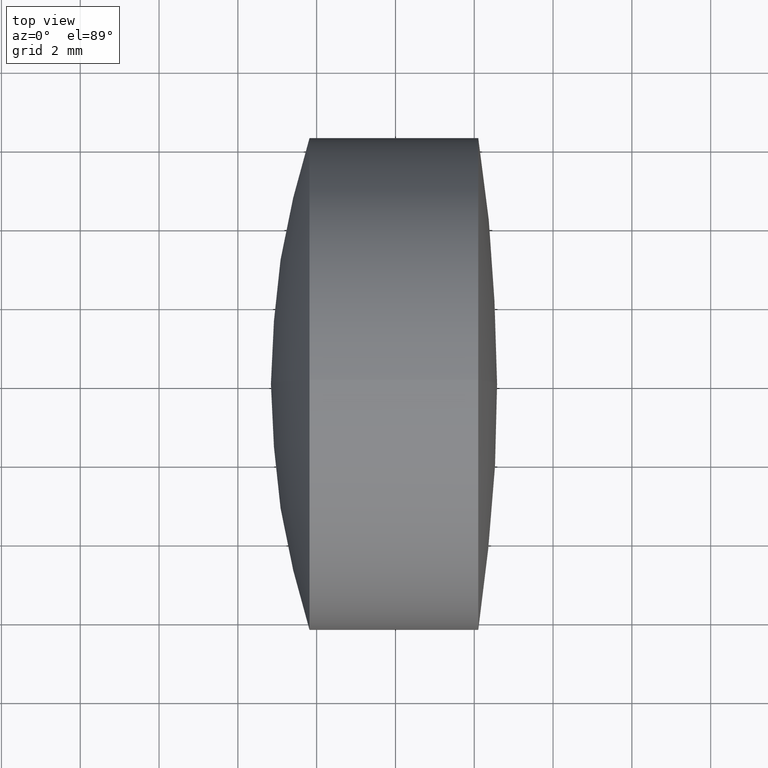
[diagram: clean part render]
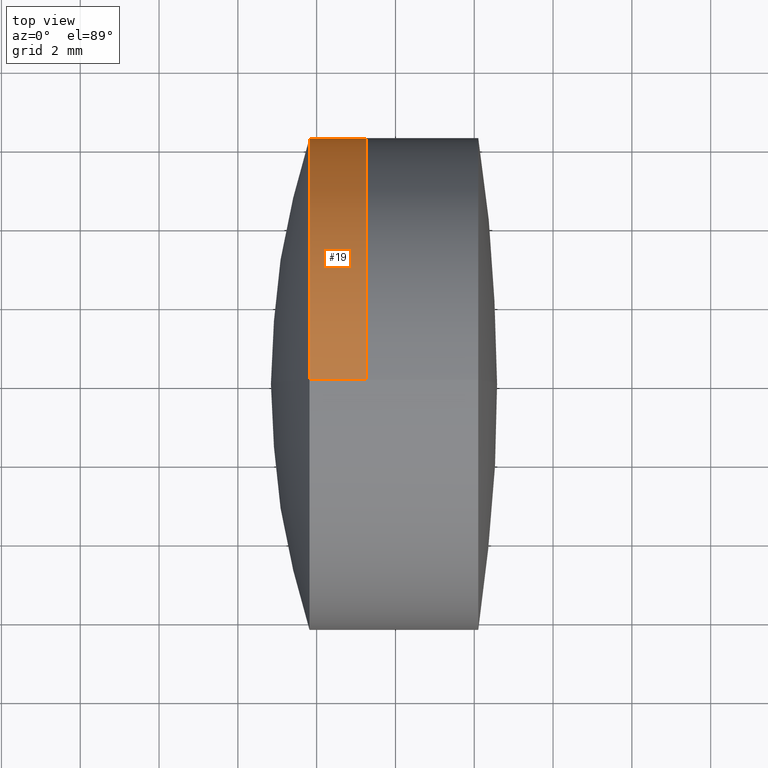
[diagram: same view with one face highlighted and labeled with its STEP entity id]
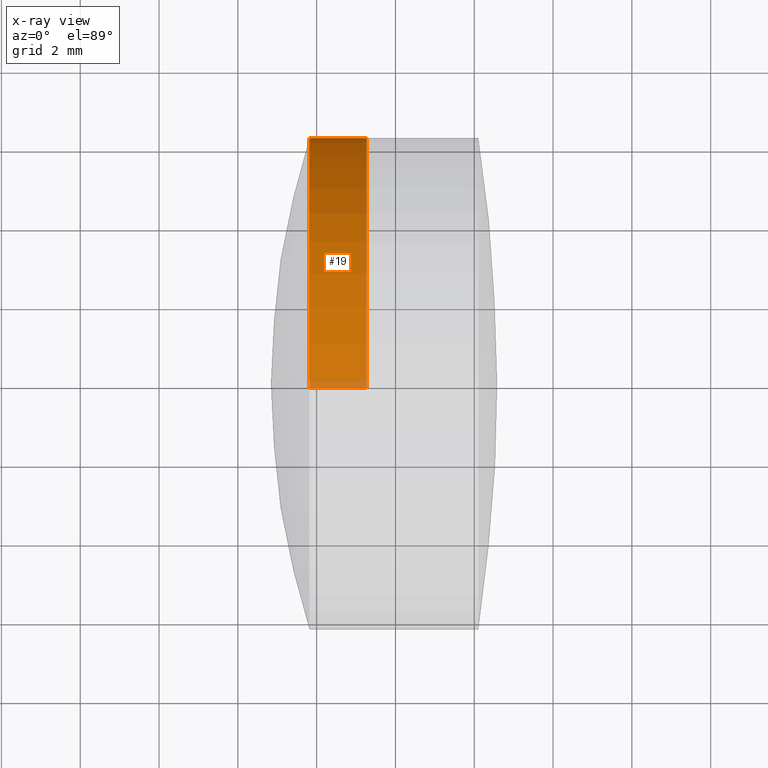
[diagram: x-ray of the same camera — body ghosted, the highlighted face saturated]
A machine part, top view. The second image highlights one B-rep face of the part: STEP entity #19.
The next image is the same camera in x-ray: the body ghosted, the highlighted face saturated — about 3% of this face is hidden behind the body in this view.
In plain terms, the highlighted cylindrical surface (partial cylindrical patch) has radius 6.25 mm, axis along (-1, -0, -0).
Its self-contained STEP definition (entity closure, byte-faithful):
#19 = ADVANCED_FACE ( 'NONE', ( #31 ), #60, .T. ) ;
#26 = CARTESIAN_POINT ( 'NONE',  ( -0.1820940951612623800, 0.0000000000000000000, 6.250000000000002700 ) ) ;
#30 = EDGE_CURVE ( 'NONE', #344, #227, #184, .T. ) ;
#31 = FACE_OUTER_BOUND ( 'NONE', #117, .T. ) ;
#32 = CARTESIAN_POINT ( 'NONE',  ( -0.1820940951612623800, 7.654042494670960600E-016, -6.250000000000003600 ) ) ;
#44 = EDGE_CURVE ( 'NONE', #227, #338, #199, .T. ) ;
#46 = DIRECTION ( 'NONE',  ( -1.000000000000000000, -0.0000000000000000000, -0.0000000000000000000 ) ) ;
#60 = CYLINDRICAL_SURFACE ( 'NONE', #129, 6.249999999999999100 ) ;
#61 = ORIENTED_EDGE ( 'NONE', *, *, #44, .F. ) ;
#68 = ORIENTED_EDGE ( 'NONE', *, *, #200, .T. ) ;
#75 = DIRECTION ( 'NONE',  ( 0.0000000000000000000, 0.0000000000000000000, 1.000000000000000000 ) ) ;
#83 = VECTOR ( 'NONE', #300, 1000.000000000000000 ) ;
#95 = CARTESIAN_POINT ( 'NONE',  ( -9.702612178336682500, 0.0000000000000000000, 0.0000000000000000000 ) ) ;
#104 = DIRECTION ( 'NONE',  ( 0.0000000000000000000, 0.0000000000000000000, 1.000000000000000000 ) ) ;
#114 = VERTEX_POINT ( 'NONE', #206 ) ;
#117 = EDGE_LOOP ( 'NONE', ( #68, #141, #61, #288 ) ) ;
#124 = DIRECTION ( 'NONE',  ( -1.000000000000000000, -0.0000000000000000000, -0.0000000000000000000 ) ) ;
#129 = AXIS2_PLACEMENT_3D ( 'NONE', #95, #124, #216 ) ;
#141 = ORIENTED_EDGE ( 'NONE', *, *, #279, .T. ) ;
#145 = AXIS2_PLACEMENT_3D ( 'NONE', #271, #242, #75 ) ;
#151 = CARTESIAN_POINT ( 'NONE',  ( 1.272351808119067900, 0.0000000000000000000, 6.249999999999999100 ) ) ;
#184 = LINE ( 'NONE', #245, #197 ) ;
#197 = VECTOR ( 'NONE', #253, 1000.000000000000000 ) ;
#199 = CIRCLE ( 'NONE', #239, 6.249999999999999100 ) ;
#200 = EDGE_CURVE ( 'NONE', #344, #114, #247, .T. ) ;
#201 = LINE ( 'NONE', #209, #83 ) ;
#206 = CARTESIAN_POINT ( 'NONE',  ( 1.272351808119067900, 7.654042494670956600E-016, -6.249999999999999100 ) ) ;
#209 = CARTESIAN_POINT ( 'NONE',  ( -9.702612178336682500, 7.654042494670956600E-016, -6.249999999999999100 ) ) ;
#212 = CARTESIAN_POINT ( 'NONE',  ( -0.1820940951612632400, 0.0000000000000000000, 0.0000000000000000000 ) ) ;
#216 = DIRECTION ( 'NONE',  ( 0.0000000000000000000, 0.0000000000000000000, 1.000000000000000000 ) ) ;
#227 = VERTEX_POINT ( 'NONE', #26 ) ;
#239 = AXIS2_PLACEMENT_3D ( 'NONE', #212, #46, #104 ) ;
#242 = DIRECTION ( 'NONE',  ( -1.000000000000000000, -0.0000000000000000000, -0.0000000000000000000 ) ) ;
#245 = CARTESIAN_POINT ( 'NONE',  ( -9.702612178336682500, 0.0000000000000000000, 6.249999999999999100 ) ) ;
#247 = CIRCLE ( 'NONE', #145, 6.249999999999999100 ) ;
#253 = DIRECTION ( 'NONE',  ( -1.000000000000000000, -0.0000000000000000000, -0.0000000000000000000 ) ) ;
#271 = CARTESIAN_POINT ( 'NONE',  ( 1.272351808119067900, 0.0000000000000000000, 0.0000000000000000000 ) ) ;
#279 = EDGE_CURVE ( 'NONE', #114, #338, #201, .T. ) ;
#288 = ORIENTED_EDGE ( 'NONE', *, *, #30, .F. ) ;
#300 = DIRECTION ( 'NONE',  ( -1.000000000000000000, -0.0000000000000000000, -0.0000000000000000000 ) ) ;
#338 = VERTEX_POINT ( 'NONE', #32 ) ;
#344 = VERTEX_POINT ( 'NONE', #151 ) ;